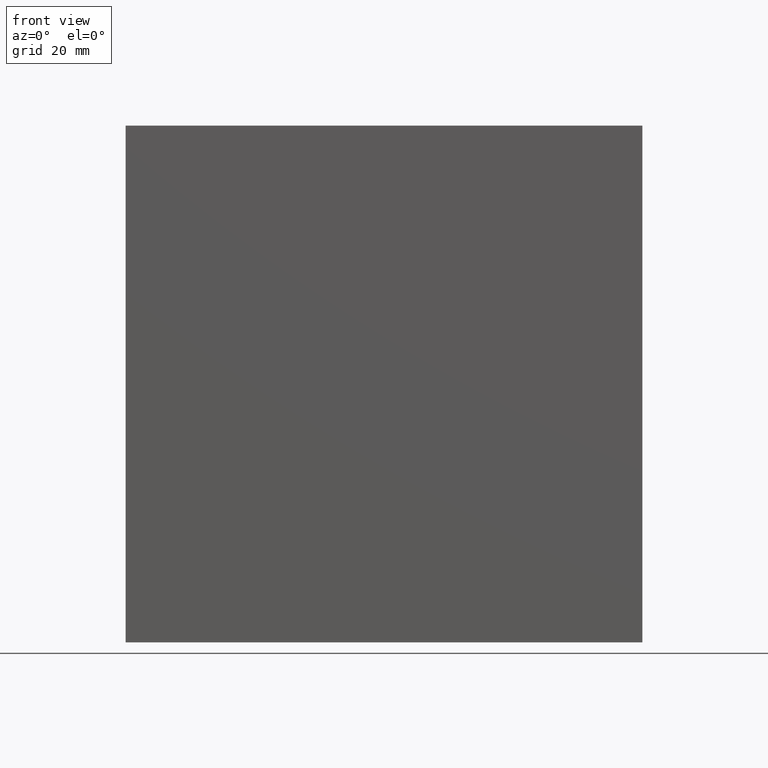
[diagram: clean part render]
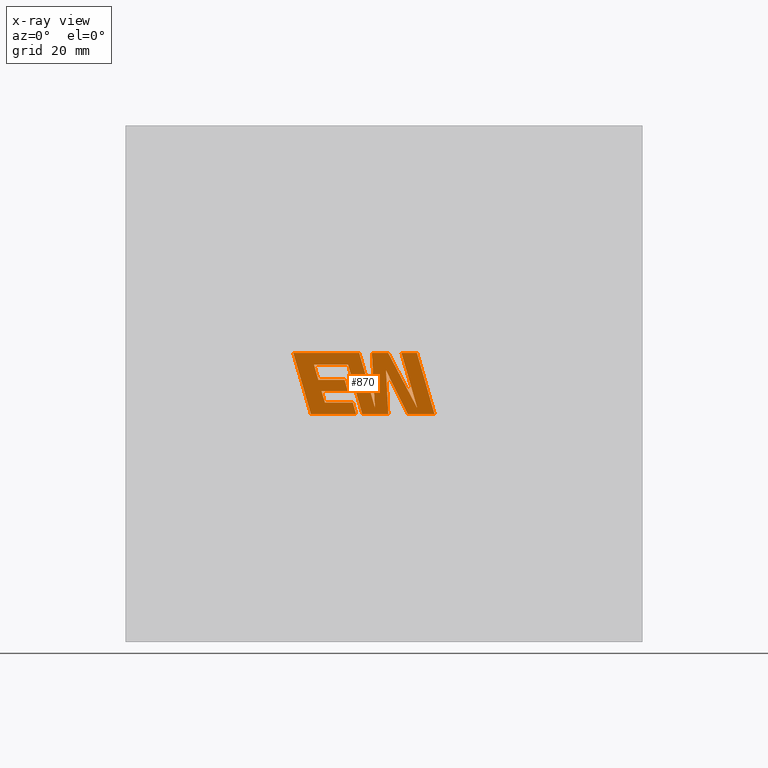
[diagram: x-ray — body ghosted, one internal face saturated and labeled with its STEP entity id]
A machine part, front view, then the same camera in x-ray: the body is ghosted and one INTERNAL B-rep face — a face not visible from any outside direction — is saturated and labeled: STEP entity #870.
In plain terms, the highlighted planar face has unit normal (0, -1, -0).
Its self-contained STEP definition (entity closure, byte-faithful):
#5 = VECTOR ( 'NONE', #513, 1000.000000000000114 ) ;
#6 = DIRECTION ( 'NONE',  ( 0.2740217765954066076, 0.000000000000000000, -0.9617234872620595842 ) ) ;
#21 = EDGE_CURVE ( 'NONE', #1104, #504, #1353, .T. ) ;
#84 = CARTESIAN_POINT ( 'NONE',  ( 51.39403723545738245, 6.200000000000000178, -48.33472130013532109 ) ) ;
#85 = DIRECTION ( 'NONE',  ( -0.2762517575166416051, 0.000000000000000000, 0.9610853065513833560 ) ) ;
#86 = VERTEX_POINT ( 'NONE', #1511 ) ;
#87 = DIRECTION ( 'NONE',  ( 0.2793947940878325209, 0.000000000000000000, -0.9601763114327583892 ) ) ;
#110 = VECTOR ( 'NONE', #1367, 1000.000000000000227 ) ;
#130 = CARTESIAN_POINT ( 'NONE',  ( 46.11530578496757471, 6.200000000000000178, -44.88000000000000256 ) ) ;
#131 = EDGE_CURVE ( 'NONE', #1368, #601, #1812, .T. ) ;
#139 = VERTEX_POINT ( 'NONE', #84 ) ;
#153 = ORIENTED_EDGE ( 'NONE', *, *, #1813, .F. ) ;
#173 = VECTOR ( 'NONE', #1626, 1000.000000000000114 ) ;
#178 = CARTESIAN_POINT ( 'NONE',  ( 49.20756074917228062, 6.200000000000000178, -55.64955860883470962 ) ) ;
#183 = ORIENTED_EDGE ( 'NONE', *, *, #312, .F. ) ;
#189 = CARTESIAN_POINT ( 'NONE',  ( 57.50794990697262676, 6.200000000000000178, -44.88000000000000256 ) ) ;
#192 = ORIENTED_EDGE ( 'NONE', *, *, #1908, .F. ) ;
#198 = CARTESIAN_POINT ( 'NONE',  ( -0.02553512749511530067, 6.200000000000000178, 0.08865145588189682346 ) ) ;
#214 = LINE ( 'NONE', #1984, #921 ) ;
#220 = VERTEX_POINT ( 'NONE', #598 ) ;
#228 = ORIENTED_EDGE ( 'NONE', *, *, #1969, .F. ) ;
#241 = ORIENTED_EDGE ( 'NONE', *, *, #1896, .F. ) ;
#248 = LINE ( 'NONE', #1507, #922 ) ;
#252 = CARTESIAN_POINT ( 'NONE',  ( 55.68027868371447653, 6.200000000000000178, -56.97690730506114676 ) ) ;
#303 = ORIENTED_EDGE ( 'NONE', *, *, #131, .F. ) ;
#306 = VECTOR ( 'NONE', #1468, 1000.000000000000000 ) ;
#312 = EDGE_CURVE ( 'NONE', #884, #1887, #2043, .T. ) ;
#313 = EDGE_CURVE ( 'NONE', #351, #451, #607, .T. ) ;
#351 = VERTEX_POINT ( 'NONE', #491 ) ;
#365 = CARTESIAN_POINT ( 'NONE',  ( 49.20756074917228062, 6.200000000000000178, -55.64955860883470962 ) ) ;
#372 = EDGE_CURVE ( 'NONE', #1934, #1368, #1760, .T. ) ;
#375 = DIRECTION ( 'NONE',  ( 0.2759782365590796593, 0.000000000000000000, -0.9611638845408937426 ) ) ;
#377 = CARTESIAN_POINT ( 'NONE',  ( 33.08321848151378219, 6.200000000000000178, -44.88000000000000256 ) ) ;
#383 = CARTESIAN_POINT ( 'NONE',  ( 38.68083630340058932, 6.200000000000000178, -52.42430026707791768 ) ) ;
#421 = CARTESIAN_POINT ( 'NONE',  ( 43.89202339528995367, 6.200000000000000178, -47.18144395279858117 ) ) ;
#427 = EDGE_LOOP ( 'NONE', ( #153, #1336, #1004, #192, #1945, #303, #661, #1139, #1288, #800, #510, #183, #1956, #1967, #241, #1475, #950, #636, #1704, #670, #1491, #228, #1086 ) ) ;
#449 = CARTESIAN_POINT ( 'NONE',  ( 38.04281733575064095, 6.200000000000000178, -50.18799707250079223 ) ) ;
#451 = VERTEX_POINT ( 'NONE', #1736 ) ;
#491 = CARTESIAN_POINT ( 'NONE',  ( 38.04281733575064095, 6.200000000000000178, -50.18799707250079223 ) ) ;
#496 = EDGE_CURVE ( 'NONE', #451, #220, #1844, .T. ) ;
#504 = VERTEX_POINT ( 'NONE', #2007 ) ;
#510 = ORIENTED_EDGE ( 'NONE', *, *, #1105, .F. ) ;
#511 = DIRECTION ( 'NONE',  ( -0.4443210308329110791, 0.000000000000000000, 0.8958676361827003776 ) ) ;
#513 = DIRECTION ( 'NONE',  ( -0.05596501978068033761, 0.000000000000000000, 0.9984327301130246912 ) ) ;
#521 = CARTESIAN_POINT ( 'NONE',  ( 60.98589995330136304, 6.200000000000000178, -56.97690730506114676 ) ) ;
#535 = DIRECTION ( 'NONE',  ( -0.2760118818968553822, 0.000000000000000000, 0.9611542233438691296 ) ) ;
#538 = VERTEX_POINT ( 'NONE', #377 ) ;
#581 = VECTOR ( 'NONE', #511, 1000.000000000000114 ) ;
#592 = DIRECTION ( 'NONE',  ( -1.000000000000000000, 0.000000000000000000, 0.000000000000000000 ) ) ;
#594 = CARTESIAN_POINT ( 'NONE',  ( 54.43393876889507510, 6.200000000000000178, -44.88000000000000256 ) ) ;
#598 = CARTESIAN_POINT ( 'NONE',  ( 43.87297036723609978, 6.200000000000000178, -52.42430026707791768 ) ) ;
#601 = VERTEX_POINT ( 'NONE', #745 ) ;
#607 = LINE ( 'NONE', #449, #2020 ) ;
#612 = LINE ( 'NONE', #1118, #1630 ) ;
#636 = ORIENTED_EDGE ( 'NONE', *, *, #1168, .F. ) ;
#651 = VERTEX_POINT ( 'NONE', #594 ) ;
#661 = ORIENTED_EDGE ( 'NONE', *, *, #372, .F. ) ;
#670 = ORIENTED_EDGE ( 'NONE', *, *, #1307, .F. ) ;
#715 = VECTOR ( 'NONE', #1328, 1000.000000000000000 ) ;
#719 = DIRECTION ( 'NONE',  ( 1.000000000000000000, 0.000000000000000000, 0.000000000000000000 ) ) ;
#732 = CARTESIAN_POINT ( 'NONE',  ( 60.98589995330136304, 6.200000000000000178, -56.97690730506114676 ) ) ;
#740 = EDGE_CURVE ( 'NONE', #1419, #139, #1363, .T. ) ;
#741 = LINE ( 'NONE', #1374, #806 ) ;
#745 = CARTESIAN_POINT ( 'NONE',  ( 51.82882338773001152, 6.200000000000000178, -44.88000000000000256 ) ) ;
#782 = LINE ( 'NONE', #1898, #1903 ) ;
#800 = ORIENTED_EDGE ( 'NONE', *, *, #1859, .F. ) ;
#806 = VECTOR ( 'NONE', #87, 1000.000000000000114 ) ;
#811 = VERTEX_POINT ( 'NONE', #521 ) ;
#812 = CARTESIAN_POINT ( 'NONE',  ( 57.50794990697262676, 6.200000000000000178, -44.88000000000000256 ) ) ;
#815 = VECTOR ( 'NONE', #1632, 1000.000000000000000 ) ;
#822 = LINE ( 'NONE', #812, #173 ) ;
#829 = EDGE_CURVE ( 'NONE', #1941, #811, #822, .T. ) ;
#831 = CARTESIAN_POINT ( 'NONE',  ( 44.84702884187903749, 6.200000000000000178, -54.67432311315302229 ) ) ;
#841 = CARTESIAN_POINT ( 'NONE',  ( 39.33555425705851860, 6.200000000000000178, -54.67432311315302229 ) ) ;
#859 = LINE ( 'NONE', #1609, #815 ) ;
#867 = EDGE_CURVE ( 'NONE', #1854, #1934, #1968, .T. ) ;
#870 = ADVANCED_FACE ( 'NONE', ( #1010 ), #1640, .T. ) ;
#875 = LINE ( 'NONE', #1456, #1235 ) ;
#884 = VERTEX_POINT ( 'NONE', #831 ) ;
#921 = VECTOR ( 'NONE', #535, 1000.000000000000114 ) ;
#922 = VECTOR ( 'NONE', #719, 1000.000000000000000 ) ;
#950 = ORIENTED_EDGE ( 'NONE', *, *, #313, .F. ) ;
#980 = VECTOR ( 'NONE', #1461, 1000.000000000000114 ) ;
#1004 = ORIENTED_EDGE ( 'NONE', *, *, #2029, .F. ) ;
#1007 = CARTESIAN_POINT ( 'NONE',  ( 57.54149500661883110, 6.200000000000000178, -55.70142109839654410 ) ) ;
#1009 = VERTEX_POINT ( 'NONE', #1764 ) ;
#1010 = FACE_OUTER_BOUND ( 'NONE', #427, .T. ) ;
#1050 = DIRECTION ( 'NONE',  ( 1.000000000000000000, 0.000000000000000000, 0.000000000000000000 ) ) ;
#1056 = LINE ( 'NONE', #1816, #1238 ) ;
#1066 = CARTESIAN_POINT ( 'NONE',  ( 43.89202339528995367, 6.200000000000000178, -47.18144395279858117 ) ) ;
#1086 = ORIENTED_EDGE ( 'NONE', *, *, #740, .F. ) ;
#1104 = VERTEX_POINT ( 'NONE', #421 ) ;
#1105 = EDGE_CURVE ( 'NONE', #1887, #1675, #1056, .T. ) ;
#1111 = VECTOR ( 'NONE', #1143, 1000.000000000000114 ) ;
#1118 = CARTESIAN_POINT ( 'NONE',  ( 37.18616670986781259, 6.200000000000000178, -47.18144395279858117 ) ) ;
#1119 = EDGE_CURVE ( 'NONE', #1359, #86, #741, .T. ) ;
#1139 = ORIENTED_EDGE ( 'NONE', *, *, #867, .F. ) ;
#1143 = DIRECTION ( 'NONE',  ( 0.4668459304955199785, 0.000000000000000000, -0.8843386665637618105 ) ) ;
#1168 = EDGE_CURVE ( 'NONE', #504, #351, #612, .T. ) ;
#1175 = LINE ( 'NONE', #1819, #1111 ) ;
#1198 = DIRECTION ( 'NONE',  ( -1.000000000000000000, 0.000000000000000000, 0.000000000000000000 ) ) ;
#1235 = VECTOR ( 'NONE', #85, 1000.000000000000227 ) ;
#1238 = VECTOR ( 'NONE', #592, 1000.000000000000000 ) ;
#1242 = LINE ( 'NONE', #1890, #715 ) ;
#1286 = VERTEX_POINT ( 'NONE', #1976 ) ;
#1288 = ORIENTED_EDGE ( 'NONE', *, *, #1610, .F. ) ;
#1293 = VECTOR ( 'NONE', #1472, 1000.000000000000000 ) ;
#1307 = EDGE_CURVE ( 'NONE', #1286, #1104, #875, .T. ) ;
#1322 = VERTEX_POINT ( 'NONE', #1007 ) ;
#1327 = CARTESIAN_POINT ( 'NONE',  ( 43.23421576143650213, 6.200000000000000178, -50.18799707250079223 ) ) ;
#1328 = DIRECTION ( 'NONE',  ( -1.000000000000000000, 0.000000000000000000, 0.000000000000000000 ) ) ;
#1336 = ORIENTED_EDGE ( 'NONE', *, *, #829, .F. ) ;
#1349 = LINE ( 'NONE', #841, #306 ) ;
#1353 = LINE ( 'NONE', #1066, #1697 ) ;
#1355 = DIRECTION ( 'NONE',  ( -0.2765379750249959967, 0.000000000000000000, 0.9610029908221278117 ) ) ;
#1359 = VERTEX_POINT ( 'NONE', #383 ) ;
#1360 = EDGE_CURVE ( 'NONE', #86, #884, #1349, .T. ) ;
#1363 = LINE ( 'NONE', #1793, #581 ) ;
#1367 = DIRECTION ( 'NONE',  ( 0.2732148821746199219, 0.000000000000000000, -0.9619530280415506951 ) ) ;
#1368 = VERTEX_POINT ( 'NONE', #1649 ) ;
#1374 = CARTESIAN_POINT ( 'NONE',  ( 38.68083630340058932, 6.200000000000000178, -52.42430026707791768 ) ) ;
#1384 = LINE ( 'NONE', #2041, #1994 ) ;
#1419 = VERTEX_POINT ( 'NONE', #252 ) ;
#1438 = VECTOR ( 'NONE', #1198, 1000.000000000000000 ) ;
#1456 = CARTESIAN_POINT ( 'NONE',  ( 46.70760485128187867, 6.200000000000000178, -56.97690730506114676 ) ) ;
#1461 = DIRECTION ( 'NONE',  ( 0.05375259206908368503, 0.000000000000000000, -0.9985542843760947251 ) ) ;
#1468 = DIRECTION ( 'NONE',  ( 1.000000000000000000, 0.000000000000000000, 0.000000000000000000 ) ) ;
#1472 = DIRECTION ( 'NONE',  ( 0.2746459304916872846, 0.000000000000000000, -0.9615454294334486729 ) ) ;
#1473 = CARTESIAN_POINT ( 'NONE',  ( 45.50101115738783619, 6.200000000000000178, -56.97690730506114676 ) ) ;
#1475 = ORIENTED_EDGE ( 'NONE', *, *, #496, .F. ) ;
#1480 = CARTESIAN_POINT ( 'NONE',  ( 46.11530578496757471, 6.200000000000000178, -44.88000000000000256 ) ) ;
#1484 = CARTESIAN_POINT ( 'NONE',  ( 51.39403723545738245, 6.200000000000000178, -48.33472130013532109 ) ) ;
#1491 = ORIENTED_EDGE ( 'NONE', *, *, #1878, .F. ) ;
#1507 = CARTESIAN_POINT ( 'NONE',  ( 54.43393876889507510, 6.200000000000000178, -44.88000000000000256 ) ) ;
#1511 = CARTESIAN_POINT ( 'NONE',  ( 39.33555425705851860, 6.200000000000000178, -54.67432311315302229 ) ) ;
#1522 = CARTESIAN_POINT ( 'NONE',  ( 48.60389608314675058, 6.200000000000000178, -44.88000000000000256 ) ) ;
#1546 = CARTESIAN_POINT ( 'NONE',  ( 44.84702884187903749, 6.200000000000000178, -54.67432311315302229 ) ) ;
#1595 = VECTOR ( 'NONE', #375, 1000.000000000000227 ) ;
#1609 = CARTESIAN_POINT ( 'NONE',  ( 43.87297036723609978, 6.200000000000000178, -52.42430026707791768 ) ) ;
#1610 = EDGE_CURVE ( 'NONE', #538, #1854, #782, .T. ) ;
#1626 = DIRECTION ( 'NONE',  ( 0.2763139702539101350, 0.000000000000000000, -0.9610674221107076143 ) ) ;
#1630 = VECTOR ( 'NONE', #6, 1000.000000000000114 ) ;
#1632 = DIRECTION ( 'NONE',  ( -1.000000000000000000, 0.000000000000000000, 0.000000000000000000 ) ) ;
#1640 = PLANE ( 'NONE',  #1806 ) ;
#1649 = CARTESIAN_POINT ( 'NONE',  ( 48.60389608314675058, 6.200000000000000178, -44.88000000000000256 ) ) ;
#1675 = VERTEX_POINT ( 'NONE', #1953 ) ;
#1697 = VECTOR ( 'NONE', #1982, 1000.000000000000000 ) ;
#1704 = ORIENTED_EDGE ( 'NONE', *, *, #21, .F. ) ;
#1716 = VECTOR ( 'NONE', #1050, 1000.000000000000000 ) ;
#1736 = CARTESIAN_POINT ( 'NONE',  ( 43.23421576143650213, 6.200000000000000178, -50.18799707250079223 ) ) ;
#1757 = DIRECTION ( 'NONE',  ( 0.000000000000000000, 0.000000000000000000, -1.000000000000000000 ) ) ;
#1760 = LINE ( 'NONE', #178, #5 ) ;
#1764 = CARTESIAN_POINT ( 'NONE',  ( 51.85924969929270389, 6.200000000000000178, -56.97690730506114676 ) ) ;
#1793 = CARTESIAN_POINT ( 'NONE',  ( 55.68027868371447653, 6.200000000000000178, -56.97690730506114676 ) ) ;
#1806 = AXIS2_PLACEMENT_3D ( 'NONE', #198, #1924, #1757 ) ;
#1808 = LINE ( 'NONE', #1484, #980 ) ;
#1812 = LINE ( 'NONE', #1522, #1716 ) ;
#1813 = EDGE_CURVE ( 'NONE', #811, #1419, #2032, .T. ) ;
#1816 = CARTESIAN_POINT ( 'NONE',  ( 45.50101115738783619, 6.200000000000000178, -56.97690730506114676 ) ) ;
#1819 = CARTESIAN_POINT ( 'NONE',  ( 51.82882338773001152, 6.200000000000000178, -44.88000000000000256 ) ) ;
#1844 = LINE ( 'NONE', #1327, #1293 ) ;
#1854 = VERTEX_POINT ( 'NONE', #130 ) ;
#1859 = EDGE_CURVE ( 'NONE', #1675, #538, #1384, .T. ) ;
#1878 = EDGE_CURVE ( 'NONE', #1009, #1286, #1242, .T. ) ;
#1887 = VERTEX_POINT ( 'NONE', #1473 ) ;
#1890 = CARTESIAN_POINT ( 'NONE',  ( 51.85924969929270389, 6.200000000000000178, -56.97690730506114676 ) ) ;
#1896 = EDGE_CURVE ( 'NONE', #220, #1359, #859, .T. ) ;
#1897 = DIRECTION ( 'NONE',  ( 1.000000000000000000, 0.000000000000000000, 0.000000000000000000 ) ) ;
#1898 = CARTESIAN_POINT ( 'NONE',  ( 43.96209291944642672, 6.200000000000000178, -44.88000000000000256 ) ) ;
#1901 = EDGE_CURVE ( 'NONE', #601, #1322, #1175, .T. ) ;
#1903 = VECTOR ( 'NONE', #1904, 1000.000000000000000 ) ;
#1904 = DIRECTION ( 'NONE',  ( 1.000000000000000000, 0.000000000000000000, 0.000000000000000000 ) ) ;
#1908 = EDGE_CURVE ( 'NONE', #1322, #651, #214, .T. ) ;
#1924 = DIRECTION ( 'NONE',  ( 0.000000000000000000, -1.000000000000000000, -0.000000000000000000 ) ) ;
#1934 = VERTEX_POINT ( 'NONE', #365 ) ;
#1941 = VERTEX_POINT ( 'NONE', #189 ) ;
#1945 = ORIENTED_EDGE ( 'NONE', *, *, #1901, .F. ) ;
#1953 = CARTESIAN_POINT ( 'NONE',  ( 36.56422143588009277, 6.200000000000000178, -56.97690730506114676 ) ) ;
#1956 = ORIENTED_EDGE ( 'NONE', *, *, #1360, .F. ) ;
#1967 = ORIENTED_EDGE ( 'NONE', *, *, #1119, .F. ) ;
#1968 = LINE ( 'NONE', #1480, #1595 ) ;
#1969 = EDGE_CURVE ( 'NONE', #139, #1009, #1808, .T. ) ;
#1976 = CARTESIAN_POINT ( 'NONE',  ( 46.70760485128187867, 6.200000000000000178, -56.97690730506114676 ) ) ;
#1982 = DIRECTION ( 'NONE',  ( -1.000000000000000000, 0.000000000000000000, 0.000000000000000000 ) ) ;
#1984 = CARTESIAN_POINT ( 'NONE',  ( 57.54149500661883110, 6.200000000000000178, -55.70142109839654410 ) ) ;
#1994 = VECTOR ( 'NONE', #1355, 1000.000000000000000 ) ;
#2007 = CARTESIAN_POINT ( 'NONE',  ( 37.18616670986781259, 6.200000000000000178, -47.18144395279858117 ) ) ;
#2020 = VECTOR ( 'NONE', #1897, 1000.000000000000000 ) ;
#2029 = EDGE_CURVE ( 'NONE', #651, #1941, #248, .T. ) ;
#2032 = LINE ( 'NONE', #732, #1438 ) ;
#2041 = CARTESIAN_POINT ( 'NONE',  ( 36.56422143588009277, 6.200000000000000178, -56.97690730506114676 ) ) ;
#2043 = LINE ( 'NONE', #1546, #110 ) ;